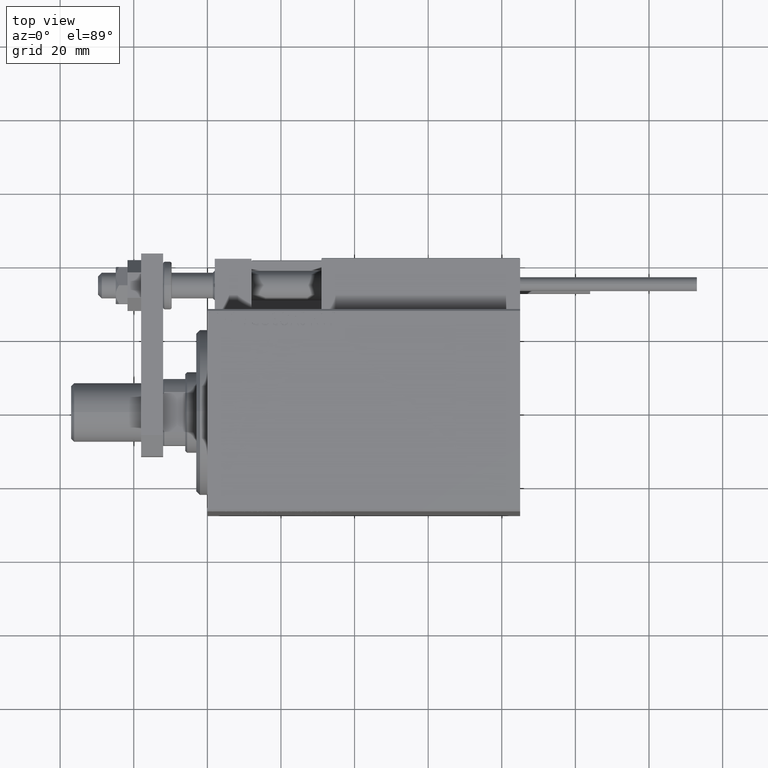
[diagram: clean part render]
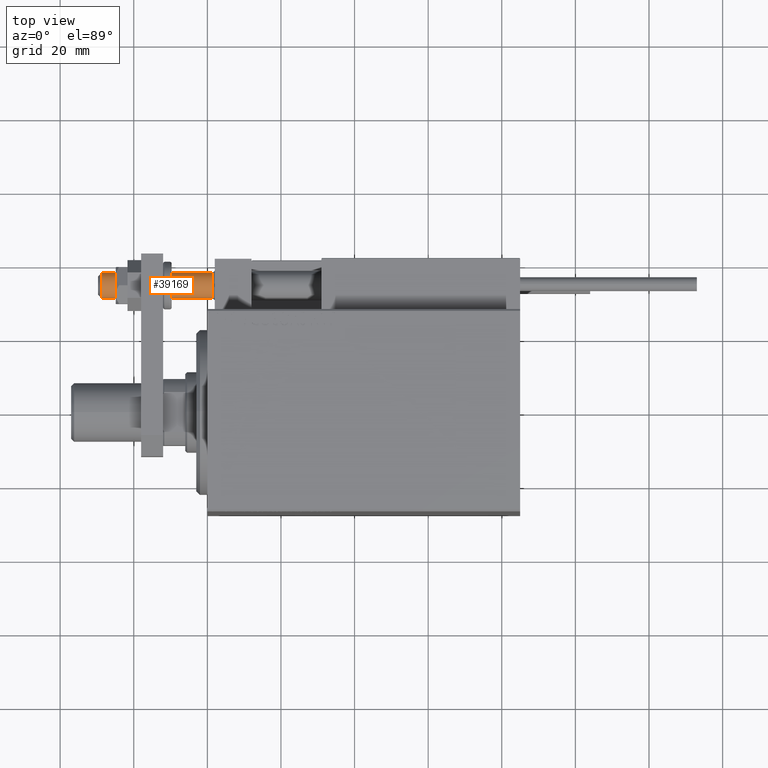
[diagram: same view with one face highlighted and labeled with its STEP entity id]
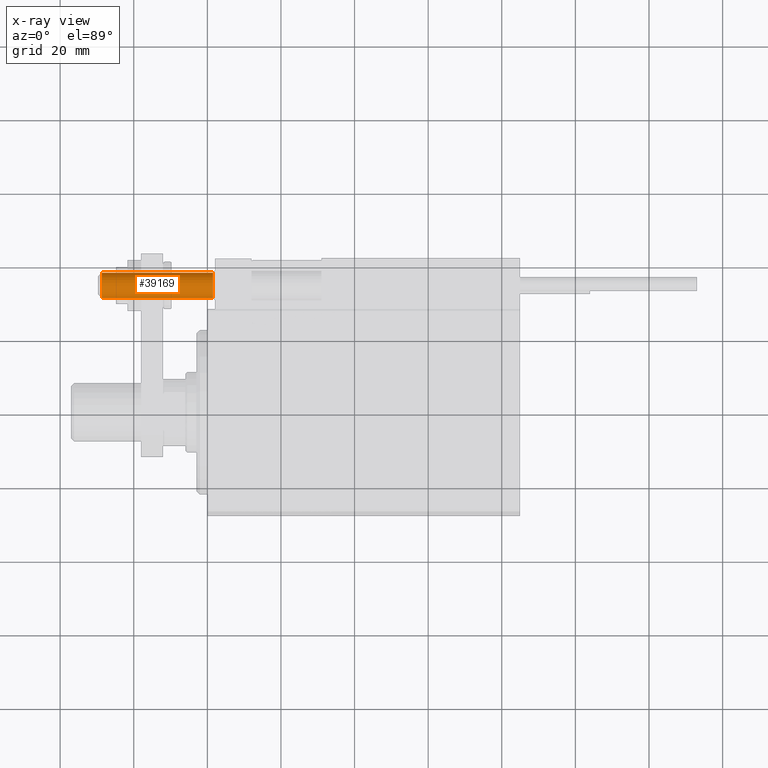
[diagram: x-ray of the same camera — body ghosted, the highlighted face saturated]
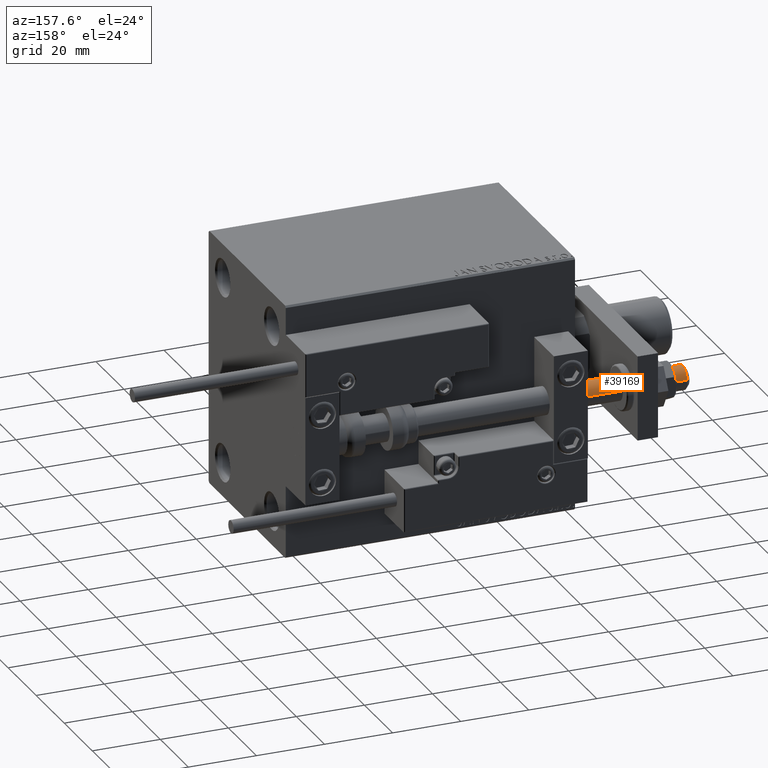
[diagram: same view with one face highlighted and labeled with its STEP entity id]
A machine part, top view. The second image highlights one B-rep face of the part: STEP entity #39169.
The next image is the same camera in x-ray: the body ghosted, the highlighted face saturated — about 0% of this face is hidden behind the body in this view.
A second angle (auxiliary view) of the same face is appended — the face is thin or edge-on in the first view.
In plain terms, the highlighted cylindrical surface (edge-blend (fillet) strip) has radius 3.5 mm, axis along (1, 0, 0).
Its self-contained STEP definition (entity closure, byte-faithful):
#1806 = VECTOR ( 'NONE', #7679, 1000.000000000000000 ) ;
#4672 = VERTEX_POINT ( 'NONE', #11551 ) ;
#5859 = AXIS2_PLACEMENT_3D ( 'NONE', #39636, #15479, #11045 ) ;
#6781 = VERTEX_POINT ( 'NONE', #7955 ) ;
#7519 = CYLINDRICAL_SURFACE ( 'NONE', #22559, 3.500000000000000000 ) ;
#7679 = DIRECTION ( 'NONE',  ( -0.000000000000000000, -0.000000000000000000, 1.000000000000000000 ) ) ;
#7955 = CARTESIAN_POINT ( 'NONE',  ( -3.500000000000000000, 4.286263797015736595E-16, 1.500000000000025535 ) ) ;
#11045 = DIRECTION ( 'NONE',  ( -1.000000000000000000, 0.000000000000000000, 0.000000000000000000 ) ) ;
#11551 = CARTESIAN_POINT ( 'NONE',  ( 3.500000000000000000, 0.000000000000000000, 1.500000000000025535 ) ) ;
#12787 = DIRECTION ( 'NONE',  ( 0.000000000000000000, 0.000000000000000000, -1.000000000000000000 ) ) ;
#13692 = CIRCLE ( 'NONE', #46122, 3.500000000000000000 ) ;
#13831 = DIRECTION ( 'NONE',  ( 1.000000000000000000, 0.000000000000000000, 0.000000000000000000 ) ) ;
#15333 = VECTOR ( 'NONE', #37742, 1000.000000000000000 ) ;
#15479 = DIRECTION ( 'NONE',  ( 0.000000000000000000, 0.000000000000000000, 1.000000000000000000 ) ) ;
#16441 = VERTEX_POINT ( 'NONE', #24069 ) ;
#20694 = EDGE_CURVE ( 'NONE', #26050, #16441, #50770, .T. ) ;
#20733 = EDGE_LOOP ( 'NONE', ( #31332, #46247, #32409, #30963 ) ) ;
#22559 = AXIS2_PLACEMENT_3D ( 'NONE', #46097, #23416, #26817 ) ;
#23416 = DIRECTION ( 'NONE',  ( -0.000000000000000000, -0.000000000000000000, 1.000000000000000000 ) ) ;
#24069 = CARTESIAN_POINT ( 'NONE',  ( -3.500000000000000000, 4.286263797015736595E-16, -28.69999999999998863 ) ) ;
#25487 = CARTESIAN_POINT ( 'NONE',  ( 3.500000000000000000, 0.000000000000000000, -28.69999999999998863 ) ) ;
#25504 = LINE ( 'NONE', #45025, #15333 ) ;
#26050 = VERTEX_POINT ( 'NONE', #25487 ) ;
#26817 = DIRECTION ( 'NONE',  ( 1.000000000000000000, 0.000000000000000000, 0.000000000000000000 ) ) ;
#27734 = EDGE_CURVE ( 'NONE', #26050, #4672, #25504, .T. ) ;
#28909 = CARTESIAN_POINT ( 'NONE',  ( 0.000000000000000000, 0.000000000000000000, 1.500000000000025535 ) ) ;
#30963 = ORIENTED_EDGE ( 'NONE', *, *, #27734, .F. ) ;
#31332 = ORIENTED_EDGE ( 'NONE', *, *, #20694, .T. ) ;
#32409 = ORIENTED_EDGE ( 'NONE', *, *, #49703, .T. ) ;
#34629 = FACE_OUTER_BOUND ( 'NONE', #20733, .T. ) ;
#36073 = LINE ( 'NONE', #40218, #1806 ) ;
#37742 = DIRECTION ( 'NONE',  ( -0.000000000000000000, -0.000000000000000000, 1.000000000000000000 ) ) ;
#39169 = ADVANCED_FACE ( 'NONE', ( #34629 ), #7519, .T. ) ;
#39636 = CARTESIAN_POINT ( 'NONE',  ( 0.000000000000000000, 0.000000000000000000, -28.69999999999998863 ) ) ;
#39942 = EDGE_CURVE ( 'NONE', #16441, #6781, #36073, .T. ) ;
#40218 = CARTESIAN_POINT ( 'NONE',  ( -3.500000000000000000, 4.286263797015736595E-16, -29.69999999999999929 ) ) ;
#45025 = CARTESIAN_POINT ( 'NONE',  ( 3.500000000000000000, 0.000000000000000000, -29.69999999999999929 ) ) ;
#46097 = CARTESIAN_POINT ( 'NONE',  ( 0.000000000000000000, 0.000000000000000000, -29.69999999999999929 ) ) ;
#46122 = AXIS2_PLACEMENT_3D ( 'NONE', #28909, #12787, #13831 ) ;
#46247 = ORIENTED_EDGE ( 'NONE', *, *, #39942, .T. ) ;
#49703 = EDGE_CURVE ( 'NONE', #6781, #4672, #13692, .T. ) ;
#50770 = CIRCLE ( 'NONE', #5859, 3.500000000000000000 ) ;